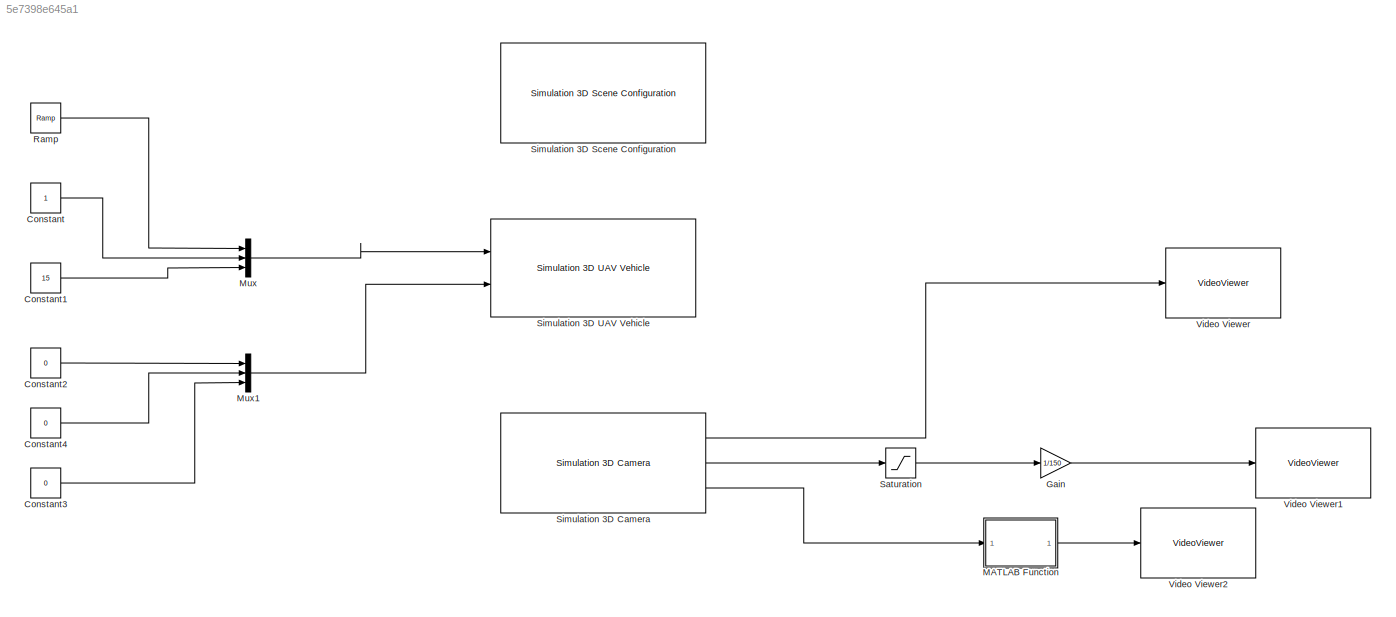
MODEL slx_5e7398e645a1
KIND model
CONFIG AbsTol = auto
CONFIG EnableMultiTasking = off
CONFIG FixedStep = auto
CONFIG MaxStep = auto
CONFIG MinStep = auto
CONFIG RelTol = 1e-3
CONFIG SampleTimeConstraint = Unconstrained
CONFIG SolverName = VariableStepAuto
CONFIG StartTime = 0.0
CONFIG StopTime = 10.0
BLOCK [Constant] Constant
BLOCK [Constant] Constant1
  Value = 15
BLOCK [Constant] Constant2
  Value = 0
BLOCK [Constant] Constant3
  Value = 0
BLOCK [Constant] Constant4
  Value = 0
BLOCK [Gain] Gain
  Gain = 1/150
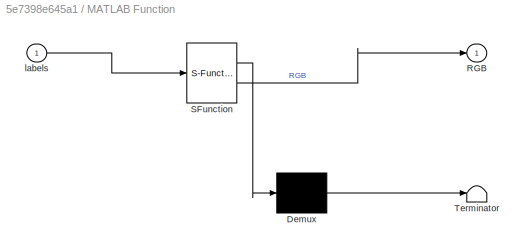
BLOCK [SubSystem] MATLAB Function
  ErrorFcn = Stateflow.Translate.translate
  PermitHierarchicalResolution = ExplicitOnly
  Ports = [1, 1]
  RequestExecContextInheritance = off
  SFBlockType = MATLAB Function
  TreatAsAtomicUnit = on
BLOCK [Demux] MATLAB Function/ Demux 
  Outputs = 1
  Ports = [1, 1]
BLOCK [S-Function] MATLAB Function/ SFunction 
  EnableBusSupport = on
  FunctionName = sf_sfun
  PortCounts = [1 2]
  Ports = [1, 2]
  SFcnIsStateOwnerBlock = off
  SFunctionDeploymentMode = off
  Tag = Stateflow S-Function 2
BLOCK [Terminator] MATLAB Function/ Terminator 
BLOCK [Outport] MATLAB Function/RGB
BLOCK [Inport] MATLAB Function/labels
BLOCK [Mux] Mux
  DisplayOption = bar
  Inputs = 3
  Ports = [3, 1]
BLOCK [Mux] Mux1
  DisplayOption = bar
  Inputs = 3
  Ports = [3, 1]
BLOCK [Reference] Ramp  REF=simulink/Sources/Ramp
  Ports = [0, 1]
  SourceBlock = simulink/Sources/Ramp
  SourceProductBaseCode = SL
  SourceType = Ramp
BLOCK [Saturate] Saturation
  UpperLimit = 150
BLOCK [Reference] Simulation 3D Camera  REF=sim3dcameralib/Simulation 3D Camera
  Ports = [0, 3]
  Priority = 1
  SourceBlock = sim3dcameralib/Simulation 3D Camera
  SourceProductBaseCode = DR,UV,VE
  SourceType = Simulation 3D Camera
BLOCK [Reference] Simulation 3D Scene Configuration  REF=sim3dlib/Simulation 3D Scene Configuration
  Ports = []
  Priority = 0
  SourceBlock = sim3dlib/Simulation 3D Scene Configuration
  SourceProductBaseCode = DR,UV,VE
  SourceType = Simulation 3D Scene Configuration
BLOCK [Reference] Simulation 3D UAV Vehicle  REF=uavsim3dlib/Simulation 3D UAV Vehicle
  Ports = [2]
  Priority = -1
  SourceBlock = uavsim3dlib/Simulation 3D UAV Vehicle
  SourceProductBaseCode = UV
  SourceType = Simulation 3D UAV Vehicle
BLOCK [VideoViewer] Video Viewer
  FigPos = [751 691 418 304]
  Ports = [1]
  ScopeSpecificationString = vipscopes.VideoViewerScopeCfg('CurrentConfiguration', extmgr.ConfigurationSet(extmgr.Configuration('Core','General UI',true),extmgr.Configuration('Core','Source UI',true),extmgr.Configuration('Sources','WiredSimulink',true),extmgr.Configuration('Visuals','Video',true),extmgr.Configuration('Tools','Image Navigation Tools',true),extmgr.Configuration('Tools','Image Tool',true),extmgr.Configuration('T...<+75ch>
BLOCK [VideoViewer] Video Viewer1
  FigPos = [1 1030 1920 930]
  Ports = [1]
  ScopeSpecificationString = vipscopes.VideoViewerScopeCfg('CurrentConfiguration', extmgr.ConfigurationSet(extmgr.Configuration('Core','General UI',true),extmgr.Configuration('Core','Source UI',true),extmgr.Configuration('Sources','WiredSimulink',true),extmgr.Configuration('Visuals','Video',true),extmgr.Configuration('Tools','Image Navigation Tools',true),extmgr.Configuration('Tools','Image Tool',true),extmgr.Configuration('T...<+73ch>
BLOCK [VideoViewer] Video Viewer2
  FigPos = [1 1030 1920 930]
  Ports = [1]
  ScopeSpecificationString = vipscopes.VideoViewerScopeCfg('CurrentConfiguration', extmgr.ConfigurationSet(extmgr.Configuration('Core','General UI',true),extmgr.Configuration('Core','Source UI',true),extmgr.Configuration('Sources','WiredSimulink',true),extmgr.Configuration('Visuals','Video',true),extmgr.Configuration('Tools','Image Navigation Tools',true),extmgr.Configuration('Tools','Image Tool',true),extmgr.Configuration('T...<+73ch>
LINE Constant1:1 -> Mux:3
LINE Constant2:1 -> Mux1:1
LINE Constant3:1 -> Mux1:3
LINE Constant4:1 -> Mux1:2
LINE Constant:1 -> Mux:2
LINE Gain:1 -> Video Viewer1:1
LINE MATLAB Function:1 -> Video Viewer2:1
LINE Mux1:1 -> Simulation 3D UAV Vehicle:2
LINE Mux:1 -> Simulation 3D UAV Vehicle:1
LINE Ramp:1 -> Mux:1
LINE Saturation:1 -> Gain:1
LINE Simulation 3D Camera:1 -> Video Viewer:1
LINE Simulation 3D Camera:2 -> Saturation:1
LINE Simulation 3D Camera:3 -> MATLAB Function:1
CHART MATLAB Function states=1 transitions=1
  STATE_LABEL 'eML_blk_kernel()'
  STATE_LABEL "SCRIPT:\nfunction RGB = uavlabel2rgb(labels)\ncoder.extrinsic('label2rgb');\nRGB = coder.nullcopy(zeros(size(labels,1),size(labels,2),3,class(labels)));\ncmap = sim3dColormap;\nRGB = label2rgb(labels,cmap);\nfunction cmap = sim3dColormap\n% Define colormap for object labels used in 3D simulation environment.\n\ncmap = [\n128 0 0     % Label 1: Building\n0 0 0       % Label 2: Not used\n72 0 90     % Label 3: ...<+2571ch>"
CHART  states=0 transitions=0
